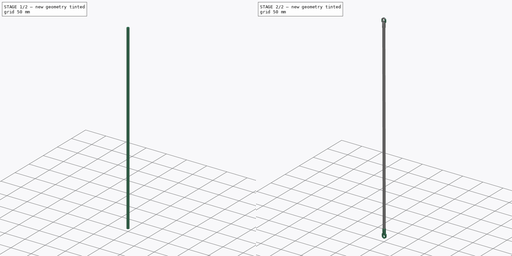
[diagram: build sequence overview — one tinted view per stage of 2, left to right]
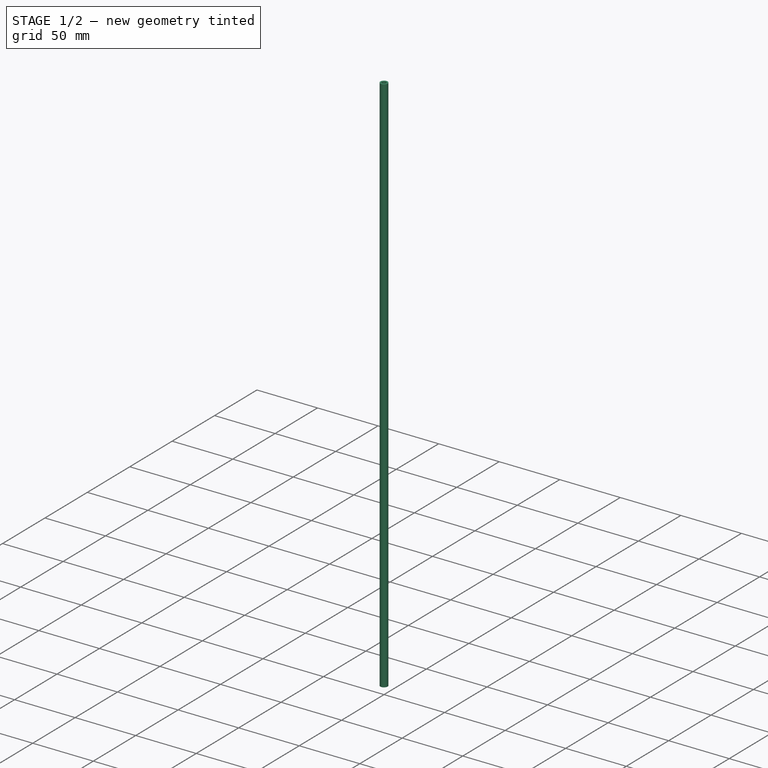
[diagram: stage 1 of 2 — iso view after this stage's code; geometry added in this stage tinted green]
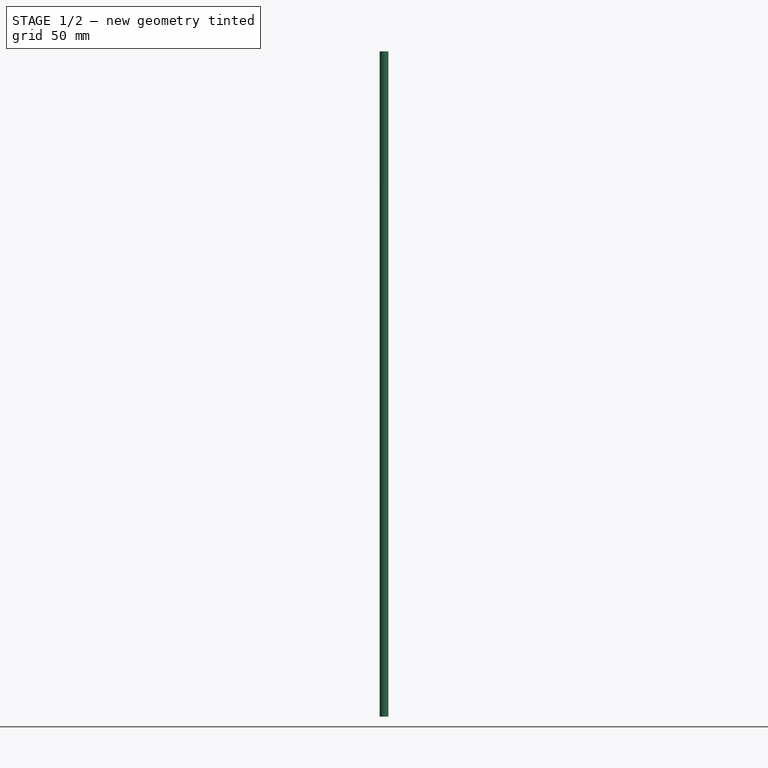
[diagram: stage 1 of 2 — front view after this stage's code; geometry added in this stage tinted green]
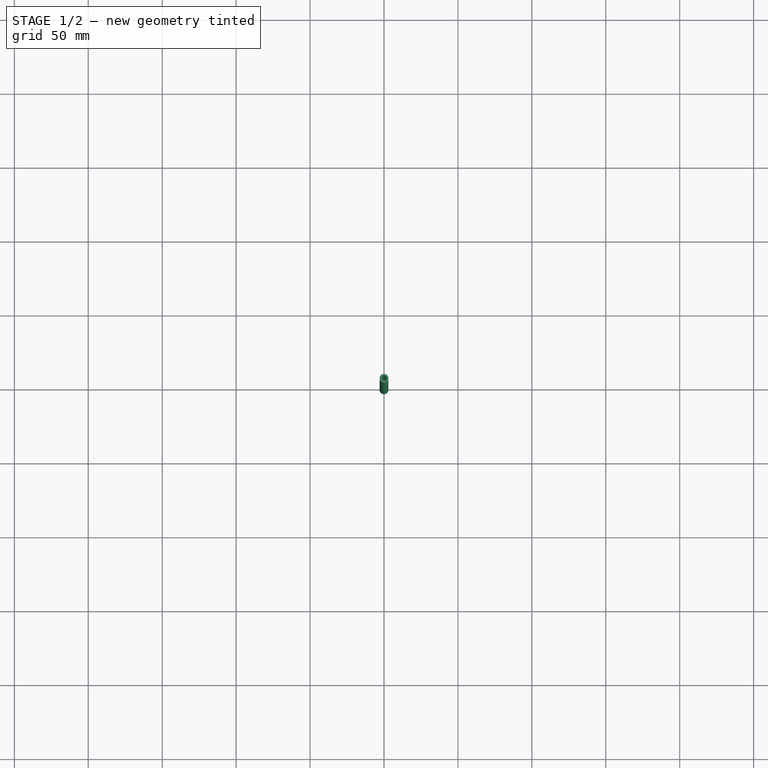
[diagram: stage 1 of 2 — top view after this stage's code; geometry added in this stage tinted green]
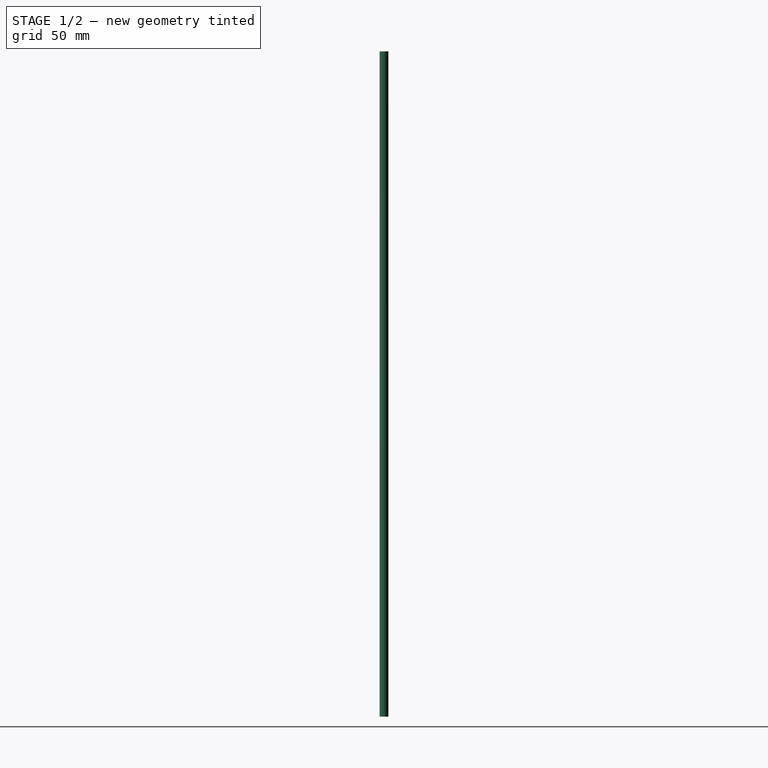
[diagram: stage 1 of 2 — right view after this stage's code; geometry added in this stage tinted green]
FCSTD DOCUMENT  (FreeCAD 2022.407R26244 +4693 (Git))
Label: rod
Comment: # 2020-05-30 22:08:10: read from <userpath>/Downloads/5347 ball.ipt
License: All rights reserved
LicenseURL: http://en.wikipedia.org/wiki/All_rights_reserved
objects: Part::FeaturePython×21, App::FeaturePython×15, App::LinkElement×2, Sketcher::SketchObject×1, PartDesign::Pad×1, PartDesign::Body×1, App::Link×1
note: 24 computed .brp shape members not serialized (recipe doc carries the construction recipe); baked Part::Feature solids carry a one-line shape summary decoded from their .brp
EXTERNAL_REF file=Traxxas 5347 ball joint.FCStd obj=Assembly001

FEATURE [Sketcher::SketchObject] Sketch
  FullyConstrained = true
  MapMode = 5
  Support = -> [XY_Plane]
  TreeRank = 0
  sketch-geometry (2):
    g0: Circle CenterX=0 CenterY=0 CenterZ=0 NormalX=0 NormalY=0 NormalZ=1 AngleXU=0 Radius=1.8
    g1: Circle CenterX=0 CenterY=0 CenterZ=0 NormalX=0 NormalY=0 NormalZ=1 AngleXU=0 Radius=3
  constraints (4):
    c: Radius(g0) = 1.8
    c: Coincident(g1,g0)
    c: Radius(g1) = 3
    c: Coincident(g-1,g0)
FEATURE [PartDesign::Pad] Pad
  AddSubType = 0
  AlongSketchNormal = false
  CheckUpToFaceLimits = true
  ClaimChildren = false
  Direction = (0,0,1)
  Fit = 0
  FitJoin = 0
  InnerFit = 0
  InnerFitJoin = 0
  InnerTaperAngle = 0
  InnerTaperAngleRev = 0
  Length = 450
  Length2 = 100
  NewSolid = false
  Profile = -> Sketch
  Suppress = false
  TreeRank = 97
  Type = 0
  _ProfileBasedVersion = 0
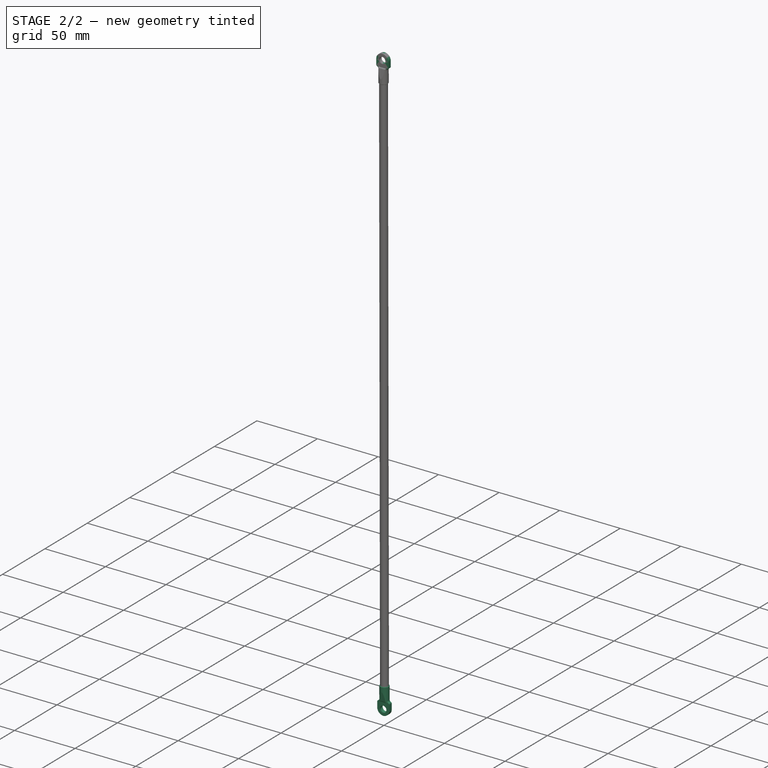
[diagram: stage 2 of 2 — iso view after this stage's code; geometry added in this stage tinted green]
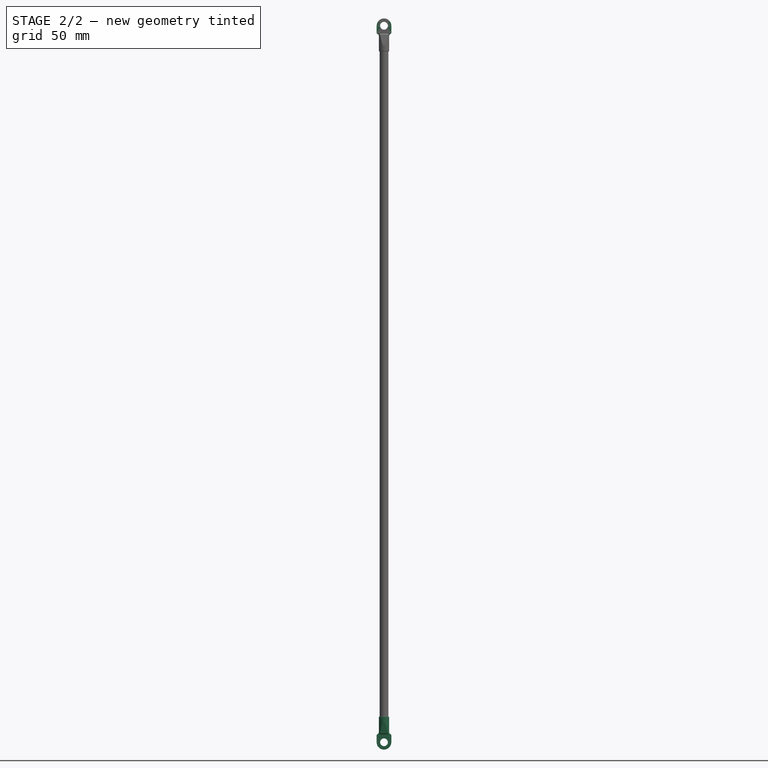
[diagram: stage 2 of 2 — front view after this stage's code; geometry added in this stage tinted green]
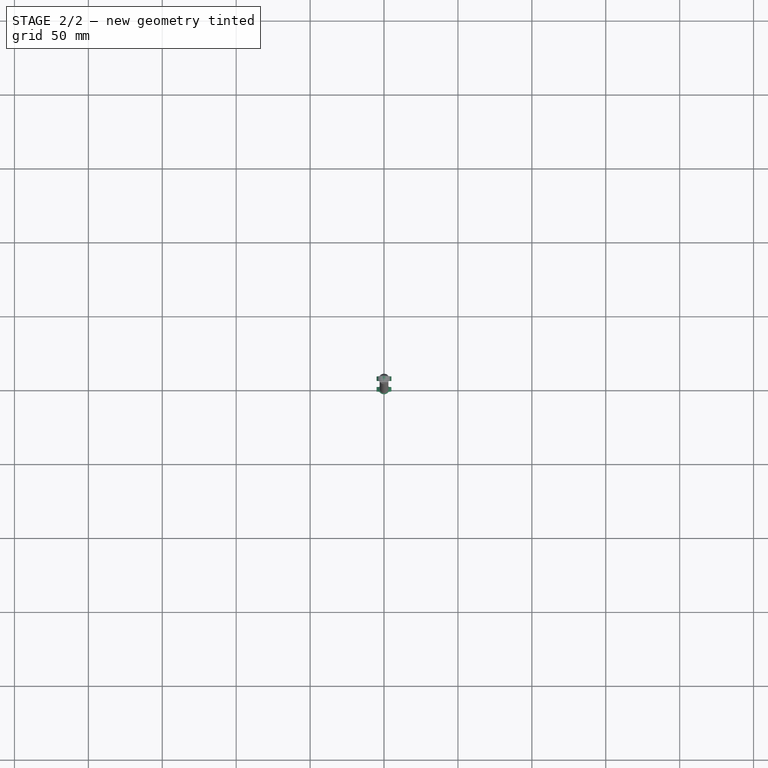
[diagram: stage 2 of 2 — top view after this stage's code; geometry added in this stage tinted green]
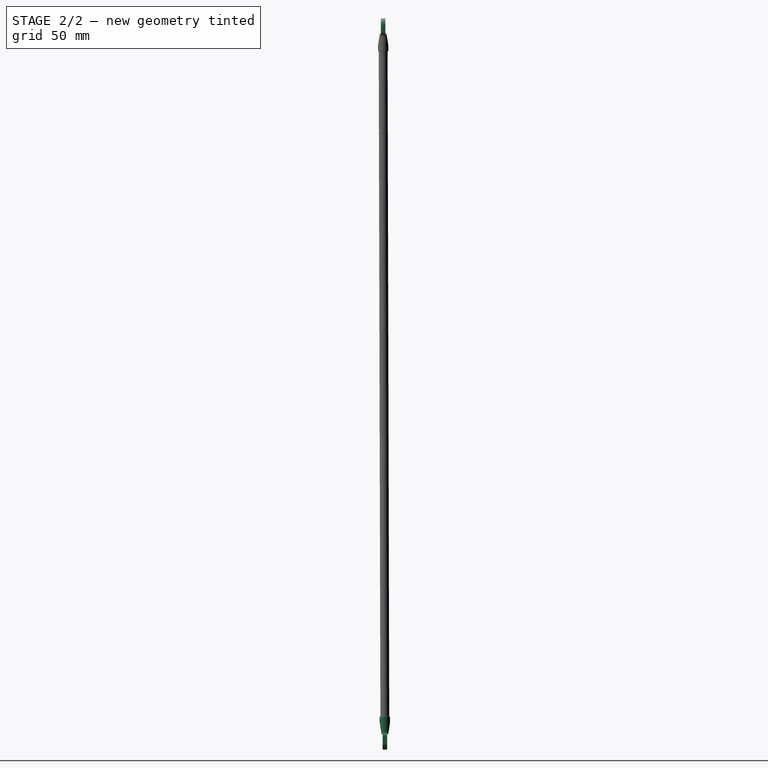
[diagram: stage 2 of 2 — right view after this stage's code; geometry added in this stage tinted green]
FEATURE [PartDesign::Body] Body  label="Rod_length"
  AutoGroupSolids = false
  ExportMode = 0
  Group = -> [Sketch,Pad]
  Origin = -> Origin
  Placement = pos=(-0.00421036,0.65715,-109.079) rot=(1,0,0;0.002472rad)
  Tip = -> Pad
  TreeRank = 123
  _ExportChildren = -> [Pad]
  _GroupVersion = 1
FEATURE [App::FeaturePython] Constraints  # WARN: FeaturePython — macro-defined, semantics opaque (R4)
  TreeRank = 125
  _LinkVersion = 1
  _Version = 1
FEATURE [Part::FeaturePython] Parts  # WARN: FeaturePython — macro-defined, semantics opaque (R4)
  Group = -> [Body]
  GroupMode = 0
  TreeRank = 127
  _LinkVersion = 1
FEATURE [App::LinkElement] Link002_i0
  LinkPlacement = pos=(-0.00436801,11.7109,-125.873) rot=(-0.70491,0.709132,-0.015268;2.9844rad)
  LinkedObject = -> <external Traxxas 5347 ball joint.FCStd>#Assembly001
  Placement = pos=(-0.00436801,11.7109,-125.873) rot=(-0.70491,0.709132,-0.015268;2.9844rad)
  TreeRank = 138
  _LinkOwner = 1847
  _LinkVersion = 1
FEATURE [App::LinkElement] Link002_i1
  LinkPlacement = pos=(-0.00436801,-31.7158,356.849) rot=(0.110357,0.021394,0.993662;1.58312rad)
  LinkedObject = -> <external Traxxas 5347 ball joint.FCStd>#Assembly001
  Placement = pos=(-0.00436801,-31.7158,356.849) rot=(0.110357,0.021394,0.993662;1.58312rad)
  TreeRank = 139
  _LinkOwner = 1847
  _LinkVersion = 1
FEATURE [App::Link] Link002  label="As3rodEnd5347"
  AutoLinkLabel = false
  AutoPlacement = true
  ElementCount = 2
  ElementList = -> [Link002_i0,Link002_i1]
  LinkPlacement = pos=(0,0,0) rot=(-1,0,0;0.087266rad)
  LinkedObject = -> <external Traxxas 5347 ball joint.FCStd>#Assembly001
  Placement = pos=(0,0,0) rot=(-1,0,0;0.087266rad)
  SyncGroupVisibility = false
  TreeRank = 135
  _LinkVersion = 1
FEATURE [Part::FeaturePython] Assembly  label="As3RodTige"  # WARN: FeaturePython — macro-defined, semantics opaque (R4)
  AutoRelax = true
  BuildShape = 0
  Freeze = false
  Group = -> [Constraints,Elements,Parts]
  TreeRank = 124
  Verbose = false
  _LinkVersion = 1
  _SolverType = 1
  _Version = 1
FEATURE [App::FeaturePython] Elements  # WARN: FeaturePython — macro-defined, semantics opaque (R4)
  Group = -> [Element,Element001,Element006]
  TreeRank = 126
  _LinkVersion = 1
FEATURE [Part::FeaturePython] Element  label="ElExtrem1"  # link proxy (typed FeaturePython)
  Detach = false
  LinkTransform = true
  LinkedObject = -> Body [Pad.Edge2]
  TreeRank = 128
  _LinkVersion = 1
  _Parent = -> Elements
FEATURE [Part::FeaturePython] Element001  label="ElExtrem2"  # link proxy (typed FeaturePython)
  Detach = false
  LinkTransform = true
  LinkedObject = -> Body [Pad.Edge3]
  TreeRank = 129
  _LinkVersion = 1
  _Parent = -> Elements
FEATURE [Part::FeaturePython] Assembly001  label="As3Rod"  # WARN: FeaturePython — macro-defined, semantics opaque (R4)
  AutoRelax = true
  BuildShape = 0
  Freeze = true
  Group = -> [Constraints001,Elements001,Parts001]
  TreeRank = 140
  Verbose = false
  _LinkVersion = 1
  _SolverType = 1
  _Version = 1
FEATURE [App::FeaturePython] Constraints001  # WARN: FeaturePython — macro-defined, semantics opaque (R4)
  Group = -> [Constraint,Constraint001,Constraint002,Constraint003]
  TreeRank = 141
  _LinkVersion = 1
  _Version = 1
FEATURE [App::FeaturePython] Elements001  # WARN: FeaturePython — macro-defined, semantics opaque (R4)
  Group = -> [_Element,_Element001,_Element002,_Element003,_Element004,_Element005,_Element006,_Element007,Element002,Element003,Element004,Element005,Element007,Element008]
  TreeRank = 142
  _LinkVersion = 1
FEATURE [Part::FeaturePython] Parts001  # WARN: FeaturePython — macro-defined, semantics opaque (R4)
  Group = -> [Assembly,Link002]
  GroupMode = 0
  TreeRank = 143
  _LinkVersion = 1
FEATURE [App::FeaturePython] Constraint  label="Locked"  # WARN: FeaturePython — macro-defined, semantics opaque (R4)
  Disabled = false
  Group = -> [ElementLink]
  TreeRank = 144
  _ConstraintType = 0
  _LinkVersion = 1
  _Parent = -> Constraints001
FEATURE [App::FeaturePython] ElementLink  label="ElExtrem1@As3RodTige@"  # link proxy (typed FeaturePython)
  LinkTransform = true
  LinkedObject = -> _Element
  TreeRank = 145
  _LinkVersion = 1
  _Parent = -> Constraint
FEATURE [Part::FeaturePython] _Element  label="ElExtrem1@As3RodTige@"  # link proxy (typed FeaturePython)
  Detach = false
  LinkTransform = true
  LinkedObject = -> Assembly [1.$ElExtrem1.]
  TreeRank = 146
  _LinkVersion = 1
  _Parent = -> Elements001
FEATURE [App::FeaturePython] Constraint001  label="Attachment"  # WARN: FeaturePython — macro-defined, semantics opaque (R4)
  Cascade = false
  Disabled = false
  Group = -> [ElementLink001,ElementLink002]
  Multiply = false
  TreeRank = 147
  _ConstraintType = 45
  _LinkVersion = 1
  _Parent = -> Constraints001
FEATURE [App::FeaturePython] ElementLink001  label="ElExtrem1@As3RodTige@"  # link proxy (typed FeaturePython)
  LinkTransform = true
  LinkedObject = -> _Element
  TreeRank = 148
  _LinkVersion = 1
  _Parent = -> Constraint001
FEATURE [App::FeaturePython] ElementLink002  label="ElCircle1@As3rodEnd5347@#0"  # link proxy (typed FeaturePython)
  LinkTransform = true
  LinkedObject = -> _Element006
  Offset = pos=(0,0,0) rot=(1,0,0;3.14159rad)
  Placement = pos=(2.42e-14,1.3143,-218.159) rot=(1,0,0;3.14159rad)
  TreeRank = 149
  _LinkVersion = 1
  _Parent = -> Constraint001
FEATURE [Part::FeaturePython] _Element001  label="ElCircle2@As3rodEnd5347@#1"  # link proxy (typed FeaturePython)
  Detach = false
  LinkTransform = true
  LinkedObject = -> Link002 [Link002_i1.1.$ElCircle2.]
  TreeRank = 150
  _LinkVersion = 1
  _Parent = -> Elements001
FEATURE [App::FeaturePython] Constraint002  label="Attachment001"  # WARN: FeaturePython — macro-defined, semantics opaque (R4)
  Cascade = false
  Disabled = false
  Group = -> [ElementLink003,ElementLink004]
  Multiply = false
  TreeRank = 151
  _ConstraintType = 45
  _LinkVersion = 1
  _Parent = -> Constraints001
FEATURE [App::FeaturePython] ElementLink003  label="ElCircle1@As3rodEnd5347@#1"  # link proxy (typed FeaturePython)
  LinkTransform = true
  LinkedObject = -> _Element007
  TreeRank = 152
  _LinkVersion = 1
  _Parent = -> Constraint002
FEATURE [Part::FeaturePython] _Element002  label="ElCircle2@As3rodEnd5347@#0"  # link proxy (typed FeaturePython)
  Detach = false
  LinkTransform = true
  LinkedObject = -> Link002 [Link002_i0.1.$ElCircle2.]
  TreeRank = 153
  _LinkVersion = 1
  _Parent = -> Elements001
FEATURE [App::FeaturePython] ElementLink004  label="ElExtrem2@As3RodTige@"  # link proxy (typed FeaturePython)
  LinkTransform = true
  LinkedObject = -> _Element003
  TreeRank = 154
  _LinkVersion = 1
  _Parent = -> Constraint002
FEATURE [Part::FeaturePython] _Element003  label="ElExtrem2@As3RodTige@"  # link proxy (typed FeaturePython)
  Detach = false
  LinkTransform = true
  LinkedObject = -> Assembly [1.$ElExtrem2.]
  TreeRank = 155
  _LinkVersion = 1
  _Parent = -> Elements001
FEATURE [Part::FeaturePython] _Element004  label="ElPlane@As3rodEnd5347@#0"  # link proxy (typed FeaturePython)
  Detach = false
  LinkTransform = true
  LinkedObject = -> Link002 [Link002_i0.1.$ElPlane.]
  TreeRank = 158
  _LinkVersion = 1
  _Parent = -> Elements001
FEATURE [Part::FeaturePython] _Element005  label="ElPlane@As3rodEnd5347@#1"  # link proxy (typed FeaturePython)
  Detach = false
  LinkTransform = true
  LinkedObject = -> Link002 [Link002_i1.1.$ElPlane.]
  TreeRank = 160
  _LinkVersion = 1
  _Parent = -> Elements001
FEATURE [Part::FeaturePython] _Element006  label="ElCircle1@As3rodEnd5347@#0"  # link proxy (typed FeaturePython)
  Detach = false
  LinkTransform = true
  LinkedObject = -> Link002 [Link002_i0.1.$ElCircle1.]
  TreeRank = 161
  _LinkVersion = 1
  _Parent = -> Elements001
FEATURE [Part::FeaturePython] _Element007  label="ElCircle1@As3rodEnd5347@#1"  # link proxy (typed FeaturePython)
  Detach = false
  LinkTransform = true
  LinkedObject = -> Link002 [Link002_i1.1.$ElCircle1.]
  TreeRank = 162
  _LinkVersion = 1
  _Parent = -> Elements001
FEATURE [App::FeaturePython] Constraint003  label="SameOrientation"  # WARN: FeaturePython — macro-defined, semantics opaque (R4)
  Disabled = true
  Group = -> [ElementLink005,ElementLink006]
  TreeRank = 163
  _ConstraintType = 2
  _LinkVersion = 1
  _Parent = -> Constraints001
FEATURE [App::FeaturePython] ElementLink005  label="ElPlane@As3rodEnd5347@#0"  # link proxy (typed FeaturePython)
  LinkTransform = true
  LinkedObject = -> _Element004
  TreeRank = 164
  _LinkVersion = 1
  _Parent = -> Constraint003
FEATURE [App::FeaturePython] ElementLink006  label="ElPlane@As3rodEnd5347@#1"  # link proxy (typed FeaturePython)
  LinkTransform = true
  LinkedObject = -> _Element005
  TreeRank = 165
  _LinkVersion = 1
  _Parent = -> Constraint003
FEATURE [Part::FeaturePython] Element002  label="ElSphereF@As3rodEnd5347@#0"  # link proxy (typed FeaturePython)
  Detach = false
  LinkTransform = true
  LinkedObject = -> Link002 [Link002_i0.1.$ElSphereF.]
  TreeRank = 166
  _LinkVersion = 1
  _Parent = -> Elements001
FEATURE [Part::FeaturePython] Element003  label="ElSphereF@As3rodEnd5347@#1"  # link proxy (typed FeaturePython)
  Detach = false
  LinkTransform = true
  LinkedObject = -> Link002 [Link002_i1.1.$ElSphereF.]
  TreeRank = 167
  _LinkVersion = 1
  _Parent = -> Elements001
FEATURE [Part::FeaturePython] Element004  # link proxy (typed FeaturePython)
  Detach = false
  LinkTransform = true
  LinkedObject = -> Link002 [0.1.$Element006.]
  TreeRank = 168
  _LinkVersion = 1
  _Parent = -> Elements001
FEATURE [Part::FeaturePython] Element005  label="ElPlane@As3rodEnd5347@#001"  # link proxy (typed FeaturePython)
  Detach = false
  LinkTransform = true
  LinkedObject = -> Link002 [0.1.$ElPlane.]
  TreeRank = 169
  _LinkVersion = 1
  _Parent = -> Elements001
FEATURE [Part::FeaturePython] Element006  # link proxy (typed FeaturePython)
  Detach = false
  LinkTransform = true
  LinkedObject = -> Body [Pad.Face1]
  TreeRank = 170
  _LinkVersion = 1
  _Parent = -> Elements
FEATURE [Part::FeaturePython] Element007  # link proxy (typed FeaturePython)
  Detach = false
  LinkTransform = true
  LinkedObject = -> Assembly [1.$Element006.]
  TreeRank = 171
  _LinkVersion = 1
  _Parent = -> Elements001
FEATURE [Part::FeaturePython] Element008  label="ElSymSphF@As3rodEnd5347@#0"  # link proxy (typed FeaturePython)
  Detach = false
  LinkTransform = true
  LinkedObject = -> Link002 [Link002_i0.1.$ElSymSphF.]
  TreeRank = 172
  _LinkVersion = 1
  _Parent = -> Elements001
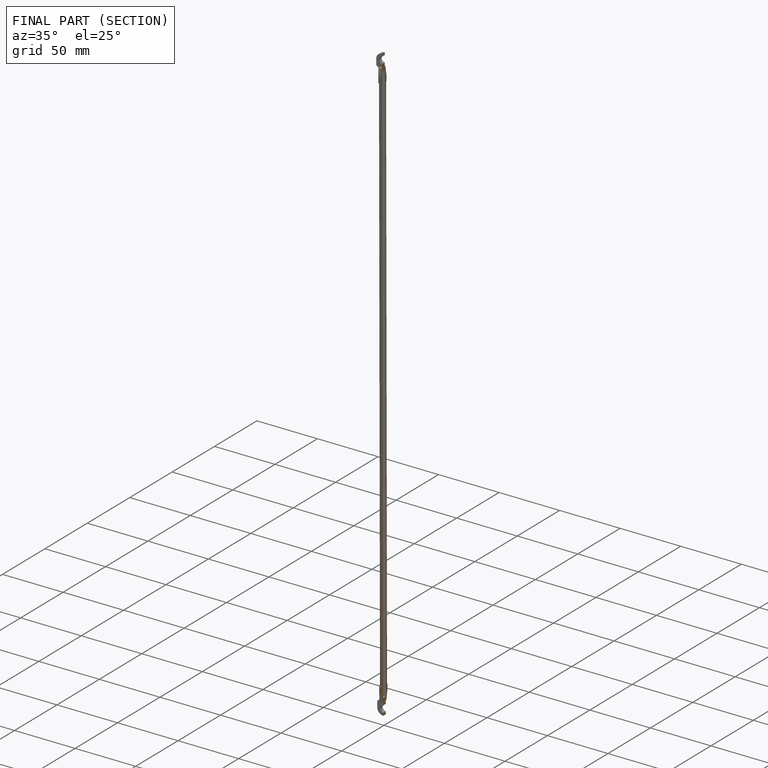
[diagram: finished part — half-section view (interior)]
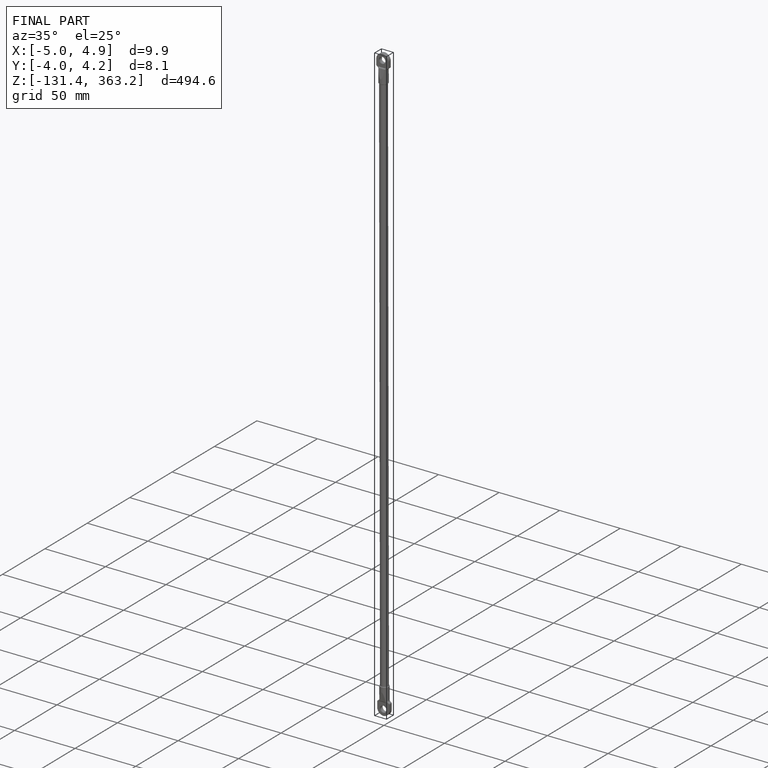
[diagram: finished part — iso view with bounding-box wireframe]
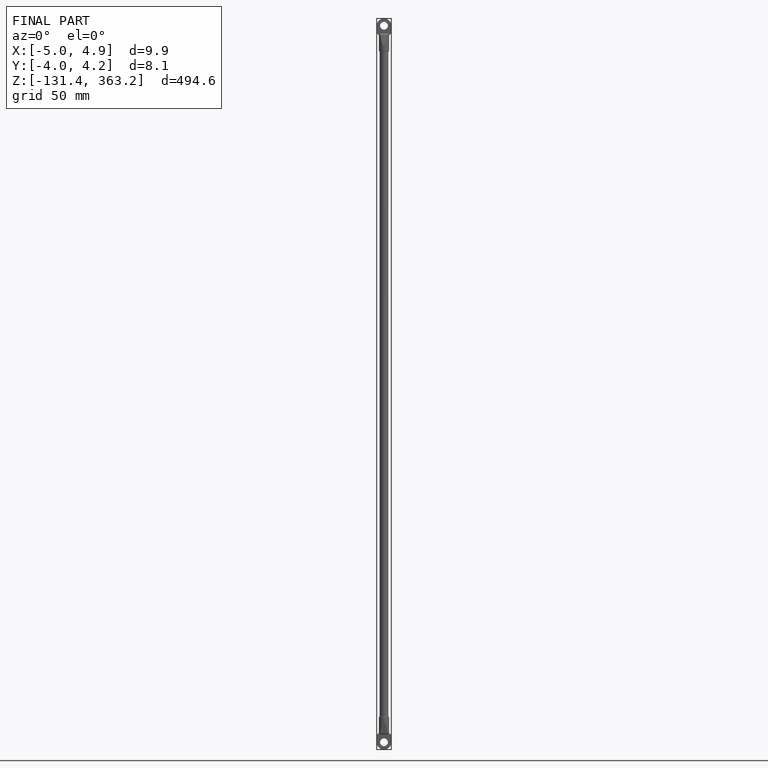
[diagram: finished part — front view with bounding-box wireframe]
